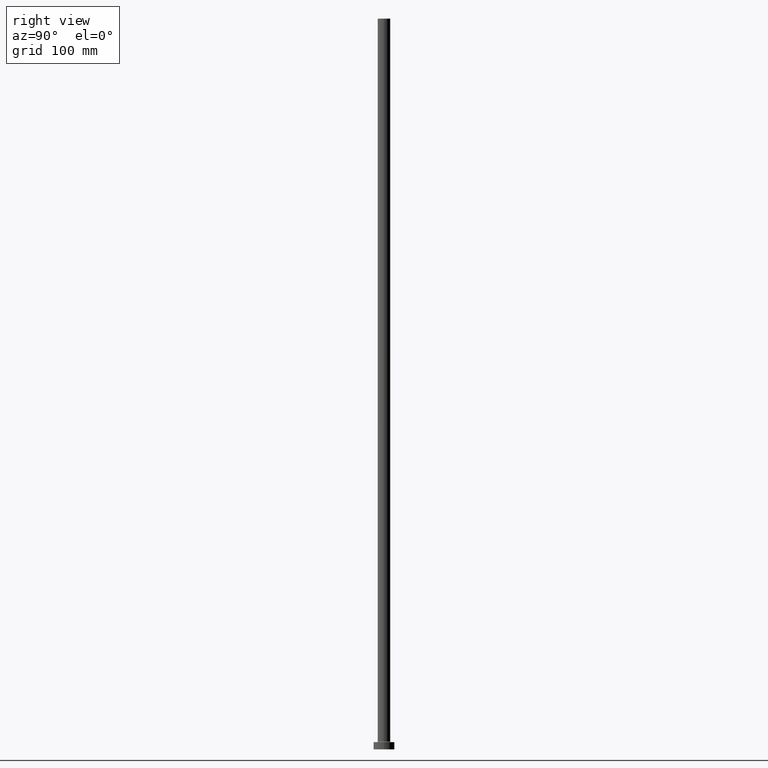
[diagram: clean part render]
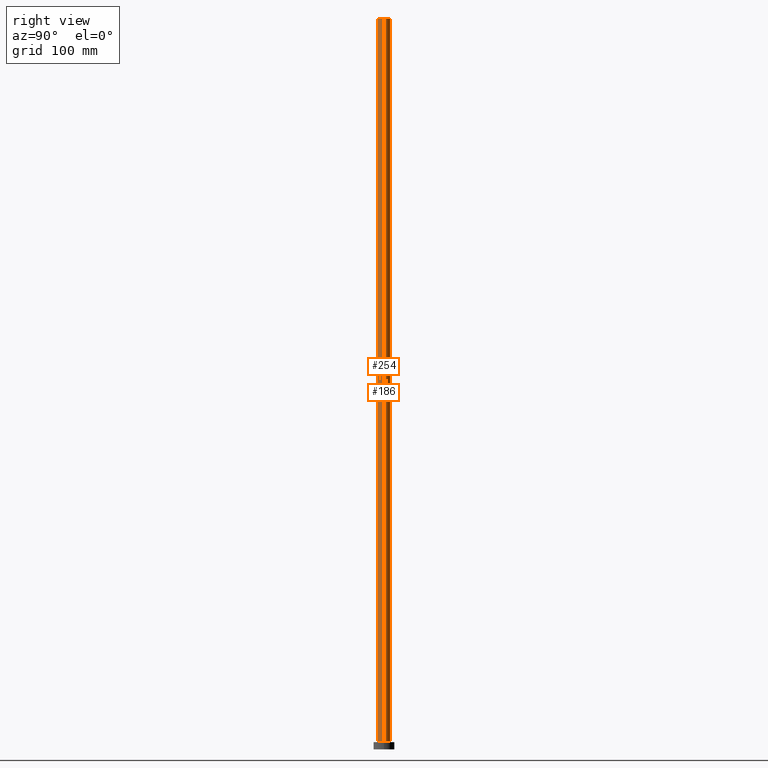
[diagram: same view with one multi-face feature highlighted, each face labeled with its STEP entity id]
A machine part, right view. The highlighted faces form ONE feature: a constant-radius fillet chain: 2 tangent blend faces with common blend radius 6 mm. The faces share edges in the B-rep.
Their STEP definitions:
[1] entity #186 (Cylinder):
#17 = CARTESIAN_POINT ( 'NONE',  ( 6.000000000000000888, 7.347880794884120722E-16, 700.0000000000000000 ) ) ;
#22 = ORIENTED_EDGE ( 'NONE', *, *, #436, .T. ) ;
#28 = CIRCLE ( 'NONE', #225, 6.000000000000000888 ) ;
#34 = LINE ( 'NONE', #259, #257 ) ;
#50 = CARTESIAN_POINT ( 'NONE',  ( 6.000000000000000888, 7.347880794884120722E-16, 7.700000000000040146 ) ) ;
#54 = CIRCLE ( 'NONE', #389, 6.000000000000000888 ) ;
#59 = VERTEX_POINT ( 'NONE', #394 ) ;
#68 = AXIS2_PLACEMENT_3D ( 'NONE', #428, #115, #255 ) ;
#74 = DIRECTION ( 'NONE',  ( 0.000000000000000000, 0.000000000000000000, 1.000000000000000000 ) ) ;
#89 = CARTESIAN_POINT ( 'NONE',  ( 0.000000000000000000, 0.000000000000000000, 700.0000000000000000 ) ) ;
#115 = DIRECTION ( 'NONE',  ( -0.000000000000000000, -0.000000000000000000, -1.000000000000000000 ) ) ;
#124 = EDGE_CURVE ( 'NONE', #139, #196, #34, .T. ) ;
#133 = DIRECTION ( 'NONE',  ( 1.000000000000000000, 0.000000000000000000, 0.000000000000000000 ) ) ;
#139 = VERTEX_POINT ( 'NONE', #152 ) ;
#146 = CARTESIAN_POINT ( 'NONE',  ( -6.000000000000000888, 0.000000000000000000, 7.700000000000040146 ) ) ;
#152 = CARTESIAN_POINT ( 'NONE',  ( -6.000000000000000888, 0.000000000000000000, 700.0000000000000000 ) ) ;
#169 = ORIENTED_EDGE ( 'NONE', *, *, #124, .F. ) ;
#178 = CARTESIAN_POINT ( 'NONE',  ( 0.000000000000000000, 0.000000000000000000, 7.700000000000040146 ) ) ;
#186 = ADVANCED_FACE ( 'NONE', ( #216 ), #291, .T. ) ;
#191 = EDGE_CURVE ( 'NONE', #382, #196, #28, .T. ) ;
#196 = VERTEX_POINT ( 'NONE', #146 ) ;
#210 = ORIENTED_EDGE ( 'NONE', *, *, #191, .T. ) ;
#212 = EDGE_CURVE ( 'NONE', #59, #139, #54, .T. ) ;
#216 = FACE_OUTER_BOUND ( 'NONE', #419, .T. ) ;
#225 = AXIS2_PLACEMENT_3D ( 'NONE', #178, #321, #454 ) ;
#255 = DIRECTION ( 'NONE',  ( -1.000000000000000000, 0.000000000000000000, 0.000000000000000000 ) ) ;
#257 = VECTOR ( 'NONE', #399, 1000.000000000000000 ) ;
#259 = CARTESIAN_POINT ( 'NONE',  ( -6.000000000000000888, 0.000000000000000000, 700.0000000000000000 ) ) ;
#275 = DIRECTION ( 'NONE',  ( -0.000000000000000000, -0.000000000000000000, -1.000000000000000000 ) ) ;
#291 = CYLINDRICAL_SURFACE ( 'NONE', #68, 6.000000000000000888 ) ;
#321 = DIRECTION ( 'NONE',  ( 0.000000000000000000, 0.000000000000000000, 1.000000000000000000 ) ) ;
#377 = LINE ( 'NONE', #17, #433 ) ;
#382 = VERTEX_POINT ( 'NONE', #50 ) ;
#389 = AXIS2_PLACEMENT_3D ( 'NONE', #89, #74, #133 ) ;
#394 = CARTESIAN_POINT ( 'NONE',  ( 6.000000000000000888, 7.347880794884120722E-16, 700.0000000000000000 ) ) ;
#399 = DIRECTION ( 'NONE',  ( -0.000000000000000000, -0.000000000000000000, -1.000000000000000000 ) ) ;
#401 = ORIENTED_EDGE ( 'NONE', *, *, #212, .F. ) ;
#419 = EDGE_LOOP ( 'NONE', ( #401, #22, #210, #169 ) ) ;
#428 = CARTESIAN_POINT ( 'NONE',  ( 0.000000000000000000, 0.000000000000000000, 700.0000000000000000 ) ) ;
#433 = VECTOR ( 'NONE', #275, 1000.000000000000000 ) ;
#436 = EDGE_CURVE ( 'NONE', #59, #382, #377, .T. ) ;
#454 = DIRECTION ( 'NONE',  ( 1.000000000000000000, 0.000000000000000000, 0.000000000000000000 ) ) ;
[2] entity #254 (Cylinder):
#8 = DIRECTION ( 'NONE',  ( 1.000000000000000000, 0.000000000000000000, 0.000000000000000000 ) ) ;
#17 = CARTESIAN_POINT ( 'NONE',  ( 6.000000000000000888, 7.347880794884120722E-16, 700.0000000000000000 ) ) ;
#19 = AXIS2_PLACEMENT_3D ( 'NONE', #44, #252, #184 ) ;
#33 = DIRECTION ( 'NONE',  ( -0.000000000000000000, -0.000000000000000000, -1.000000000000000000 ) ) ;
#34 = LINE ( 'NONE', #259, #257 ) ;
#35 = EDGE_CURVE ( 'NONE', #196, #382, #110, .T. ) ;
#44 = CARTESIAN_POINT ( 'NONE',  ( 0.000000000000000000, 0.000000000000000000, 7.700000000000040146 ) ) ;
#46 = CIRCLE ( 'NONE', #118, 6.000000000000000888 ) ;
#50 = CARTESIAN_POINT ( 'NONE',  ( 6.000000000000000888, 7.347880794884120722E-16, 7.700000000000040146 ) ) ;
#58 = CARTESIAN_POINT ( 'NONE',  ( 0.000000000000000000, 0.000000000000000000, 700.0000000000000000 ) ) ;
#59 = VERTEX_POINT ( 'NONE', #394 ) ;
#110 = CIRCLE ( 'NONE', #19, 6.000000000000000888 ) ;
#118 = AXIS2_PLACEMENT_3D ( 'NONE', #290, #430, #8 ) ;
#124 = EDGE_CURVE ( 'NONE', #139, #196, #34, .T. ) ;
#129 = DIRECTION ( 'NONE',  ( -1.000000000000000000, 0.000000000000000000, 0.000000000000000000 ) ) ;
#139 = VERTEX_POINT ( 'NONE', #152 ) ;
#146 = CARTESIAN_POINT ( 'NONE',  ( -6.000000000000000888, 0.000000000000000000, 7.700000000000040146 ) ) ;
#152 = CARTESIAN_POINT ( 'NONE',  ( -6.000000000000000888, 0.000000000000000000, 700.0000000000000000 ) ) ;
#166 = ORIENTED_EDGE ( 'NONE', *, *, #436, .F. ) ;
#184 = DIRECTION ( 'NONE',  ( 1.000000000000000000, 0.000000000000000000, 0.000000000000000000 ) ) ;
#196 = VERTEX_POINT ( 'NONE', #146 ) ;
#252 = DIRECTION ( 'NONE',  ( 0.000000000000000000, 0.000000000000000000, 1.000000000000000000 ) ) ;
#254 = ADVANCED_FACE ( 'NONE', ( #378 ), #446, .T. ) ;
#257 = VECTOR ( 'NONE', #399, 1000.000000000000000 ) ;
#259 = CARTESIAN_POINT ( 'NONE',  ( -6.000000000000000888, 0.000000000000000000, 700.0000000000000000 ) ) ;
#275 = DIRECTION ( 'NONE',  ( -0.000000000000000000, -0.000000000000000000, -1.000000000000000000 ) ) ;
#283 = ORIENTED_EDGE ( 'NONE', *, *, #35, .T. ) ;
#288 = EDGE_CURVE ( 'NONE', #139, #59, #46, .T. ) ;
#290 = CARTESIAN_POINT ( 'NONE',  ( 0.000000000000000000, 0.000000000000000000, 700.0000000000000000 ) ) ;
#299 = ORIENTED_EDGE ( 'NONE', *, *, #124, .T. ) ;
#374 = ORIENTED_EDGE ( 'NONE', *, *, #288, .F. ) ;
#377 = LINE ( 'NONE', #17, #433 ) ;
#378 = FACE_OUTER_BOUND ( 'NONE', #443, .T. ) ;
#382 = VERTEX_POINT ( 'NONE', #50 ) ;
#394 = CARTESIAN_POINT ( 'NONE',  ( 6.000000000000000888, 7.347880794884120722E-16, 700.0000000000000000 ) ) ;
#399 = DIRECTION ( 'NONE',  ( -0.000000000000000000, -0.000000000000000000, -1.000000000000000000 ) ) ;
#430 = DIRECTION ( 'NONE',  ( 0.000000000000000000, 0.000000000000000000, 1.000000000000000000 ) ) ;
#433 = VECTOR ( 'NONE', #275, 1000.000000000000000 ) ;
#436 = EDGE_CURVE ( 'NONE', #59, #382, #377, .T. ) ;
#443 = EDGE_LOOP ( 'NONE', ( #166, #374, #299, #283 ) ) ;
#446 = CYLINDRICAL_SURFACE ( 'NONE', #458, 6.000000000000000888 ) ;
#458 = AXIS2_PLACEMENT_3D ( 'NONE', #58, #33, #129 ) ;